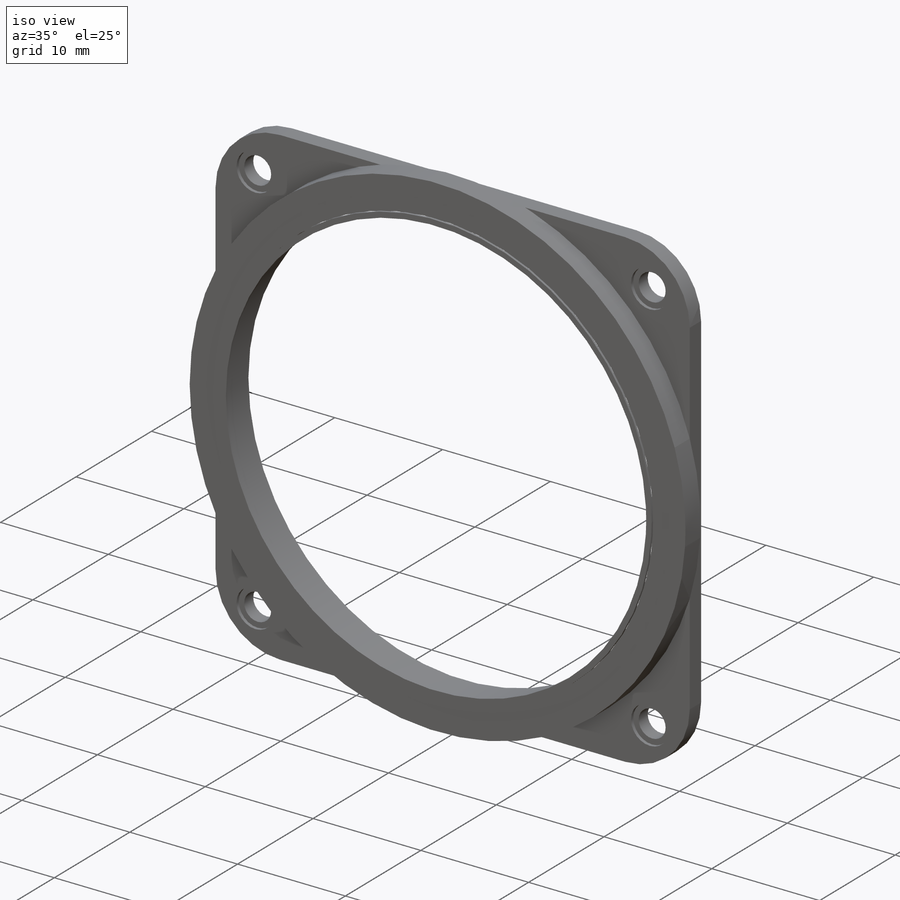
[diagram: iso view]
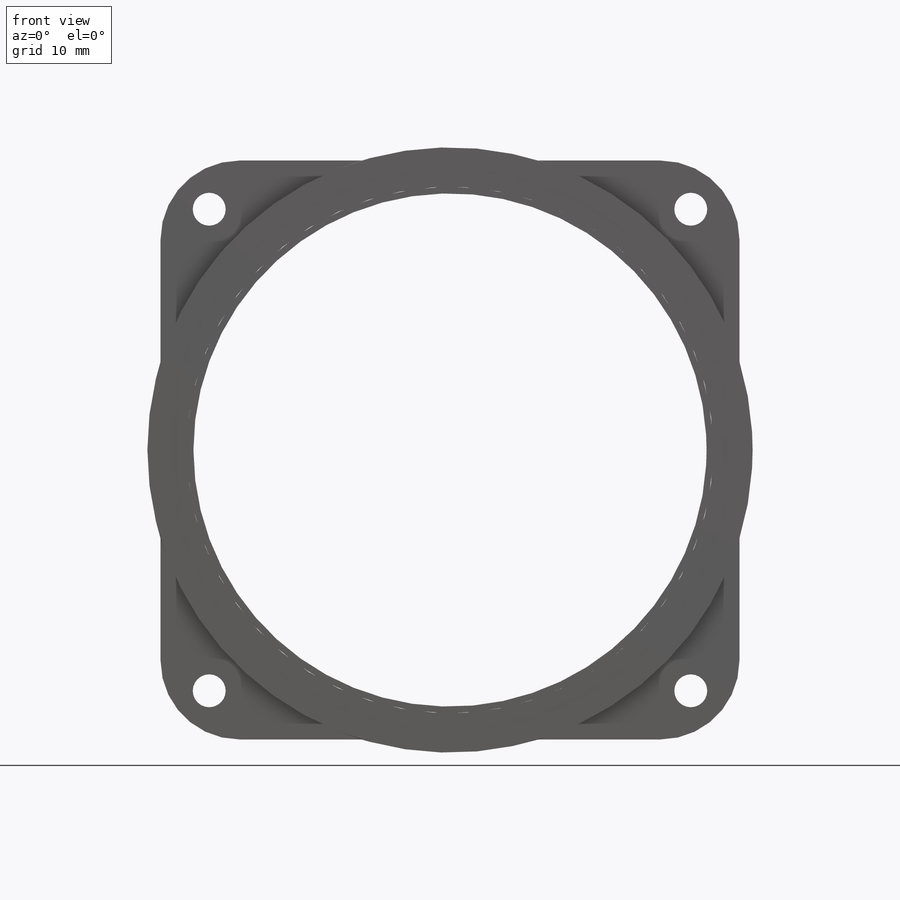
[diagram: front view]
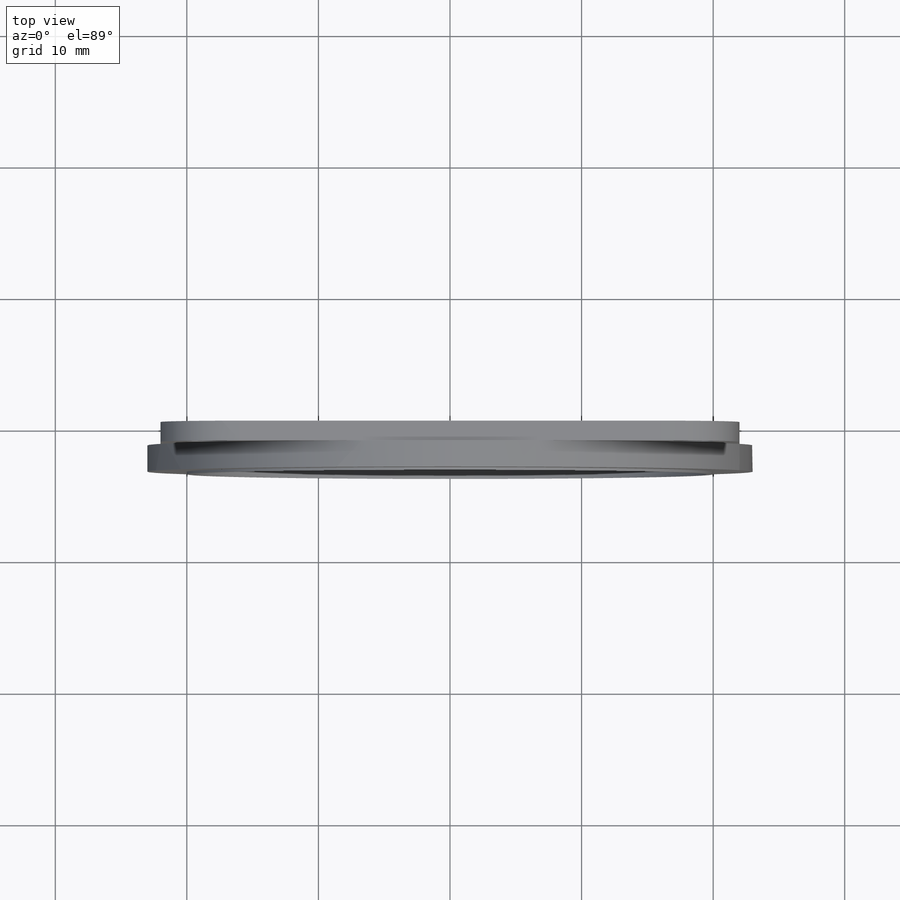
[diagram: top view]
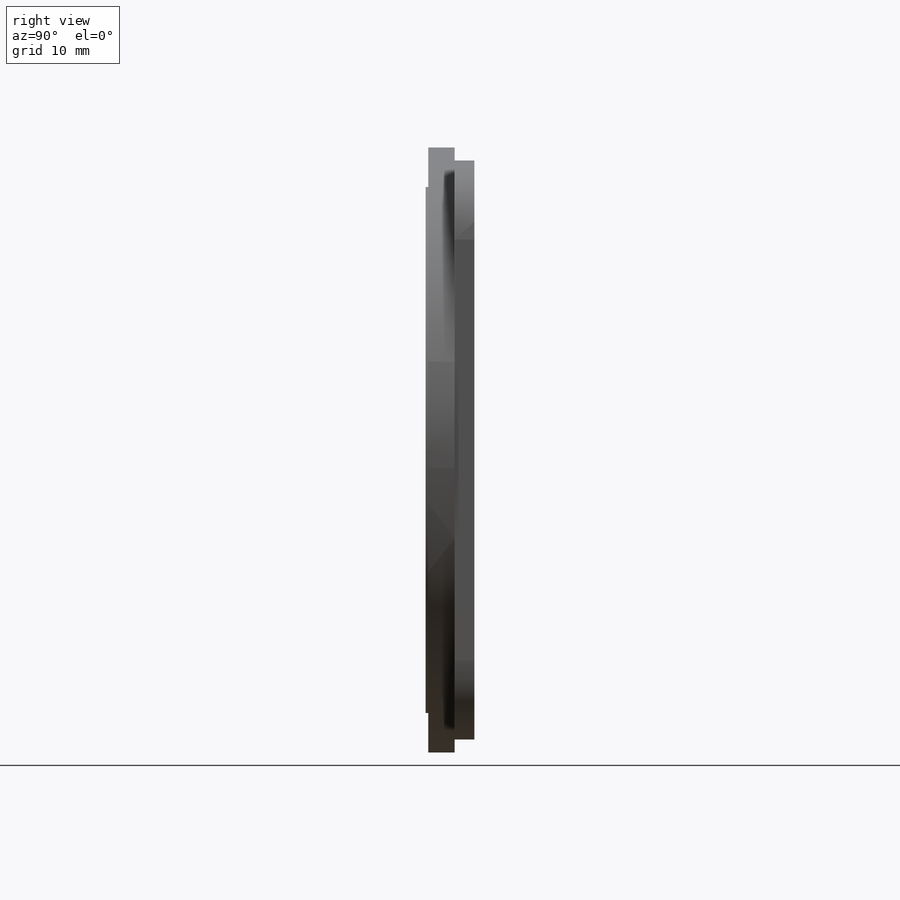
[diagram: right view]
SOLIDWORKS PART (.sldprt)
format: sldprt  version: not decoded by parser v0  size: 223,232 bytes
history: native  units: mm
features: sketch x6, plane x4, extrude x3, cut_extrude x3, material x1 (+8 scaffold rows collapsed)
feature tree (25):
  scaffold x8  (default folders/planes/origin — collapsed)
  material  "Material <sin especificar>"
  plane  "Alzado"
  plane  "Planta"
  plane  "Vista lateral"
  sketch  "Croquis1"  dims[D3=6.0mm D1=44.0mm D2=44.0mm]
  extrude  "Saliente-Extruir1"  Depth=1.5mm
  sketch  "Croquis2"  dims[D1=40.0mm]
  cut_extrude  "Cortar-Extruir1"  [1 undecoded]
  sketch  "Croquis3"  dims[D1=46.0mm]
  extrude  "Saliente-Extruir2"  Depth=2mm
  sketch  "Croquis4"  dims[c1.D3=2.5mm c1.D1=3.7mm c1.D2=3.7mm c1.D4=~33.579513mm c2.D2=3.7mm]
  cut_extrude  "Cortar-Extruir2"  Depth=2mm
  sketch  "Croquis6"  dims[D1=3.5mm D2=3.5mm D3=3.5mm D4=3.5mm]
  cut_extrude  "Cortar-Extruir3"  Depth=0.3mm
  plane  "Plano1"  Offset=0mm
  sketch  "Croquis7"  dims[D1=39.0mm D2=40.0mm]
  extrude  "Saliente-Extruir3"  Depth=0.2mm
decode coverage: 11 of 12 modeling features carry decoded parameters
note: ~ marks probable driven/reference dimensions
note: 1 parameter value undecoded
note: suppression state not decoded; provenance and decode notes live in map.json
